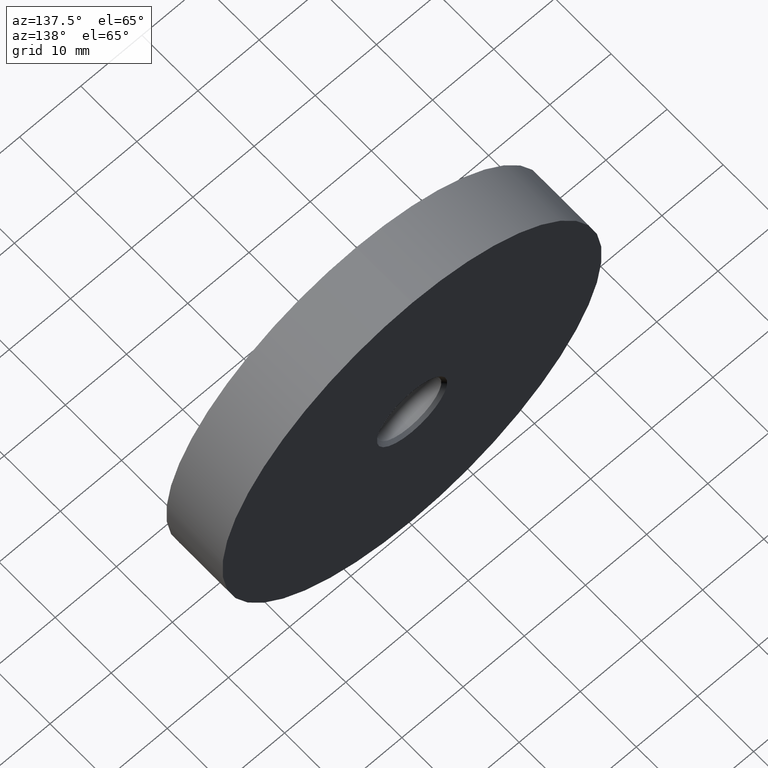
[diagram: clean part render]
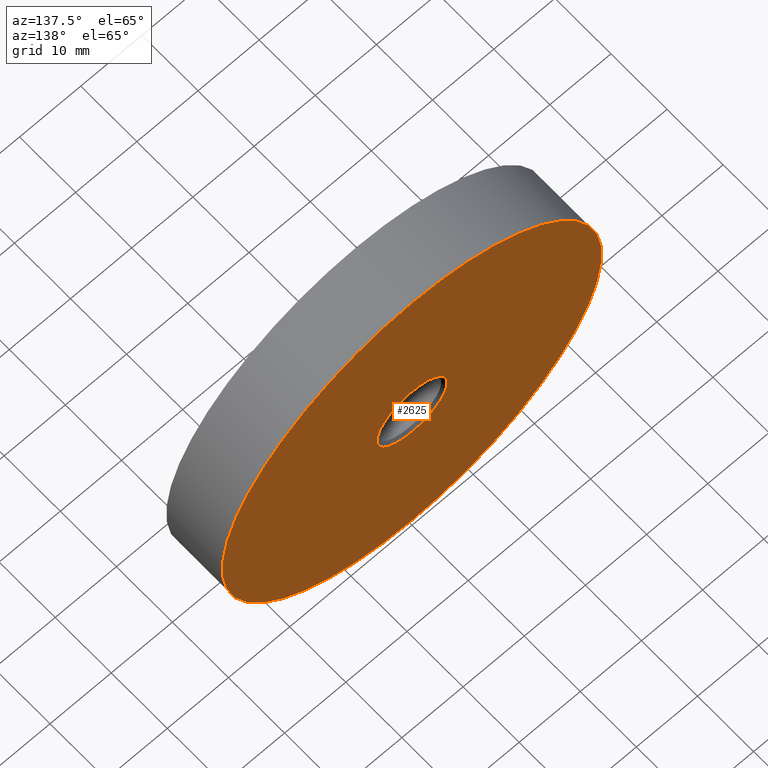
[diagram: same view with one face highlighted and labeled with its STEP entity id]
A machine part, auxiliary view. The second image highlights one B-rep face of the part: STEP entity #2625.
In plain terms, the highlighted planar face has unit normal (-0, 1, 0).
Its self-contained STEP definition (entity closure, byte-faithful):
#178 = AXIS2_PLACEMENT_3D ( 'NONE', #12223, #4351, #13327 ) ;
#303 = CARTESIAN_POINT ( 'NONE',  ( 0.000000000000000000, 9.999999999999996447, 0.000000000000000000 ) ) ;
#399 = DIRECTION ( 'NONE',  ( 0.000000000000000000, 0.000000000000000000, 1.000000000000000000 ) ) ;
#488 = EDGE_CURVE ( 'NONE', #1664, #1111, #760, .T. ) ;
#760 = CIRCLE ( 'NONE', #12595, 31.00000000000000355 ) ;
#1111 = VERTEX_POINT ( 'NONE', #2724 ) ;
#1379 = CIRCLE ( 'NONE', #13631, 5.750000000000000000 ) ;
#1546 = VERTEX_POINT ( 'NONE', #12760 ) ;
#1664 = VERTEX_POINT ( 'NONE', #9102 ) ;
#2625 = ADVANCED_FACE ( 'NONE', ( #11470, #11646 ), #11106, .T. ) ;
#2724 = CARTESIAN_POINT ( 'NONE',  ( 0.000000000000000000, 9.999999999999996447, 31.00000000000000355 ) ) ;
#2786 = CARTESIAN_POINT ( 'NONE',  ( 0.000000000000000000, 9.999999999999996447, 0.000000000000000000 ) ) ;
#2976 = VERTEX_POINT ( 'NONE', #8879 ) ;
#4351 = DIRECTION ( 'NONE',  ( -0.000000000000000000, 1.000000000000000000, 0.000000000000000000 ) ) ;
#6102 = EDGE_LOOP ( 'NONE', ( #11725, #10477 ) ) ;
#6629 = EDGE_CURVE ( 'NONE', #2976, #1546, #1379, .T. ) ;
#7054 = CARTESIAN_POINT ( 'NONE',  ( 0.000000000000000000, 9.999999999999996447, 0.000000000000000000 ) ) ;
#7175 = DIRECTION ( 'NONE',  ( -0.000000000000000000, 1.000000000000000000, -0.000000000000000000 ) ) ;
#7264 = EDGE_LOOP ( 'NONE', ( #10809, #8729 ) ) ;
#7313 = CARTESIAN_POINT ( 'NONE',  ( 0.000000000000000000, 9.999999999999996447, 0.000000000000000000 ) ) ;
#8060 = DIRECTION ( 'NONE',  ( -0.000000000000000000, 1.000000000000000000, -0.000000000000000000 ) ) ;
#8205 = AXIS2_PLACEMENT_3D ( 'NONE', #7054, #8060, #399 ) ;
#8300 = DIRECTION ( 'NONE',  ( 0.000000000000000000, 0.000000000000000000, 1.000000000000000000 ) ) ;
#8498 = DIRECTION ( 'NONE',  ( 0.000000000000000000, 0.000000000000000000, 1.000000000000000000 ) ) ;
#8501 = EDGE_CURVE ( 'NONE', #1546, #2976, #11389, .T. ) ;
#8507 = EDGE_CURVE ( 'NONE', #1111, #1664, #12763, .T. ) ;
#8729 = ORIENTED_EDGE ( 'NONE', *, *, #488, .T. ) ;
#8879 = CARTESIAN_POINT ( 'NONE',  ( 7.041719095097280880E-16, 9.999999999999996447, -5.750000000000000000 ) ) ;
#9102 = CARTESIAN_POINT ( 'NONE',  ( 3.796405077356795904E-15, 9.999999999999996447, -31.00000000000000711 ) ) ;
#9308 = DIRECTION ( 'NONE',  ( 0.000000000000000000, 0.000000000000000000, 1.000000000000000000 ) ) ;
#10477 = ORIENTED_EDGE ( 'NONE', *, *, #6629, .F. ) ;
#10809 = ORIENTED_EDGE ( 'NONE', *, *, #8507, .T. ) ;
#11106 = PLANE ( 'NONE',  #178 ) ;
#11326 = AXIS2_PLACEMENT_3D ( 'NONE', #303, #11428, #9308 ) ;
#11389 = CIRCLE ( 'NONE', #11326, 5.750000000000000000 ) ;
#11428 = DIRECTION ( 'NONE',  ( -0.000000000000000000, 1.000000000000000000, -0.000000000000000000 ) ) ;
#11470 = FACE_OUTER_BOUND ( 'NONE', #7264, .T. ) ;
#11646 = FACE_BOUND ( 'NONE', #6102, .T. ) ;
#11725 = ORIENTED_EDGE ( 'NONE', *, *, #8501, .F. ) ;
#12223 = CARTESIAN_POINT ( 'NONE',  ( -31.00000000000000355, 9.999999999999996447, 0.000000000000000000 ) ) ;
#12595 = AXIS2_PLACEMENT_3D ( 'NONE', #2786, #12908, #8498 ) ;
#12760 = CARTESIAN_POINT ( 'NONE',  ( 0.000000000000000000, 9.999999999999996447, 5.750000000000000000 ) ) ;
#12763 = CIRCLE ( 'NONE', #8205, 31.00000000000000355 ) ;
#12908 = DIRECTION ( 'NONE',  ( -0.000000000000000000, 1.000000000000000000, -0.000000000000000000 ) ) ;
#13327 = DIRECTION ( 'NONE',  ( 0.000000000000000000, 0.000000000000000000, 1.000000000000000000 ) ) ;
#13631 = AXIS2_PLACEMENT_3D ( 'NONE', #7313, #7175, #8300 ) ;